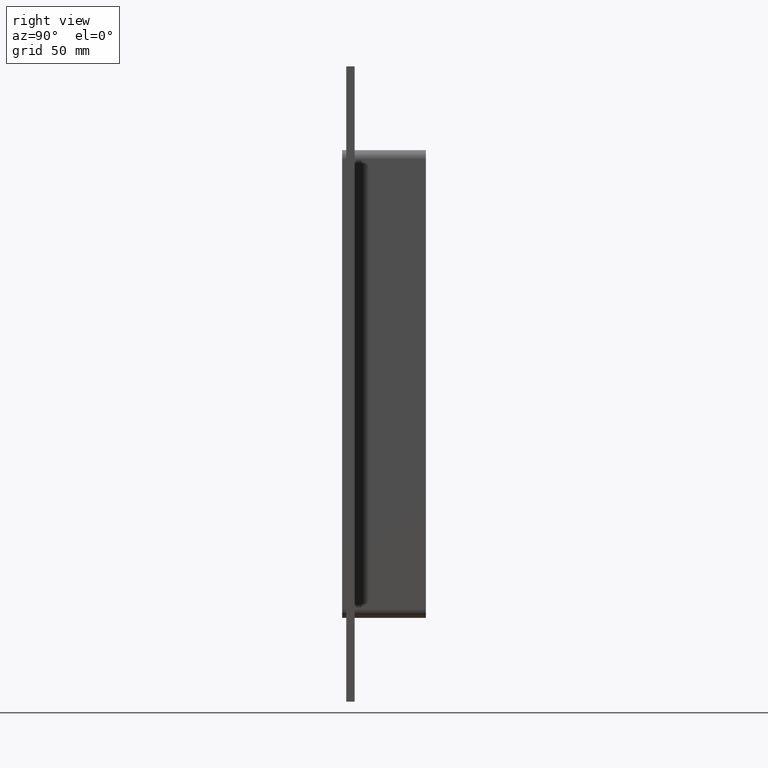
[diagram: clean part render]
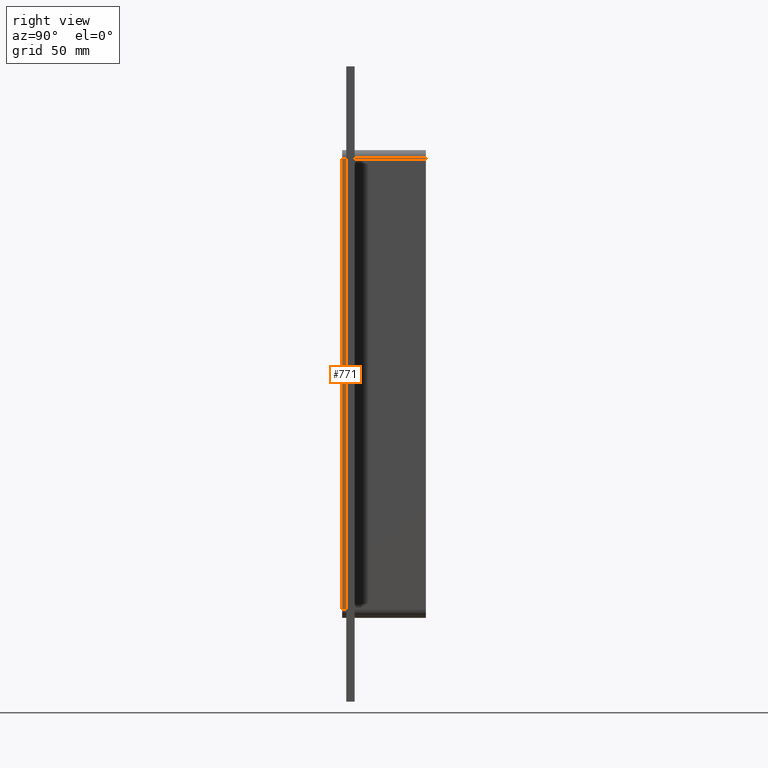
[diagram: same view with one face highlighted and labeled with its STEP entity id]
A machine part, right view. The second image highlights one B-rep face of the part: STEP entity #771.
In plain terms, the highlighted planar face has unit normal (1, 0, 0).
Its self-contained STEP definition (entity closure, byte-faithful):
#550=CARTESIAN_POINT('',(66.25,0.0,161.5));
#551=VERTEX_POINT('',#550);
#559=CARTESIAN_POINT('',(66.25,0.0,-161.5));
#560=VERTEX_POINT('',#559);
#561=CARTESIAN_POINT('',(66.25,0.0,-161.5));
#562=DIRECTION('',(0.0,0.0,1.0));
#563=VECTOR('',#562,323.0);
#564=LINE('',#561,#563);
#565=EDGE_CURVE('',#560,#551,#564,.T.);
#698=CARTESIAN_POINT('',(66.25,-3.0,161.5));
#699=VERTEX_POINT('',#698);
#707=CARTESIAN_POINT('',(66.25,-3.0,161.5));
#708=DIRECTION('',(0.0,1.0,0.0));
#709=VECTOR('',#708,3.0);
#710=LINE('',#707,#709);
#711=EDGE_CURVE('',#699,#551,#710,.T.);
#748=CARTESIAN_POINT('',(66.25,0.0,167.5));
#749=DIRECTION('',(1.0,0.0,0.0));
#750=DIRECTION('',(0.0,0.0,-1.0));
#751=AXIS2_PLACEMENT_3D('',#748,#749,#750);
#752=PLANE('',#751);
#753=ORIENTED_EDGE('',*,*,#565,.T.);
#754=ORIENTED_EDGE('',*,*,#711,.F.);
#755=CARTESIAN_POINT('',(66.25,-3.0,-161.5));
#756=VERTEX_POINT('',#755);
#757=CARTESIAN_POINT('',(66.25,-3.0,-161.5));
#758=DIRECTION('',(0.0,0.0,1.0));
#759=VECTOR('',#758,323.0);
#760=LINE('',#757,#759);
#761=EDGE_CURVE('',#756,#699,#760,.T.);
#762=ORIENTED_EDGE('',*,*,#761,.F.);
#763=CARTESIAN_POINT('',(66.25,0.0,-161.5));
#764=DIRECTION('',(0.0,-1.0,0.0));
#765=VECTOR('',#764,3.0);
#766=LINE('',#763,#765);
#767=EDGE_CURVE('',#560,#756,#766,.T.);
#768=ORIENTED_EDGE('',*,*,#767,.F.);
#769=EDGE_LOOP('',(#753,#754,#762,#768));
#770=FACE_OUTER_BOUND('',#769,.T.);
#771=ADVANCED_FACE('',(#770),#752,.T.);